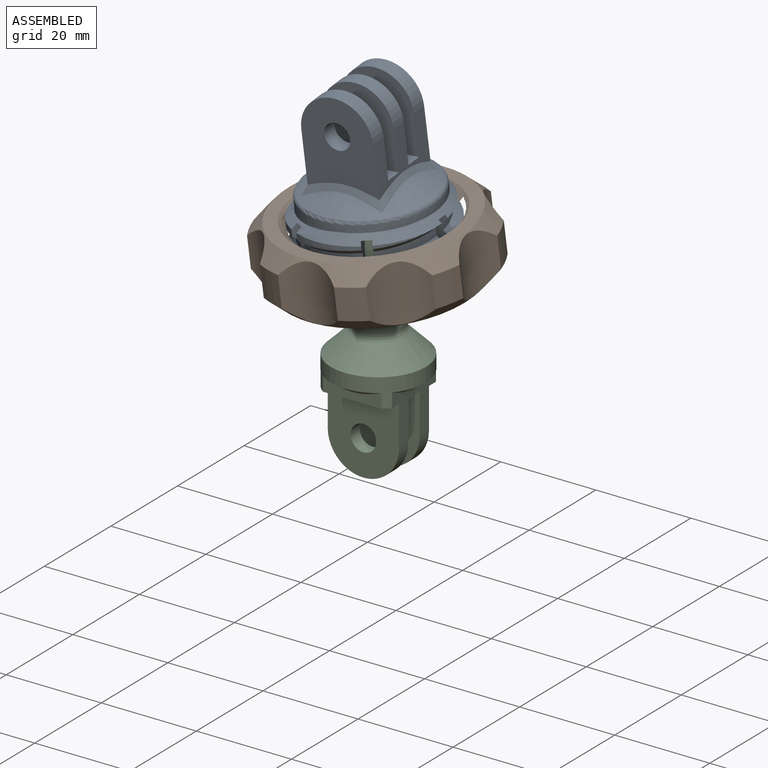
[diagram: assembled view]
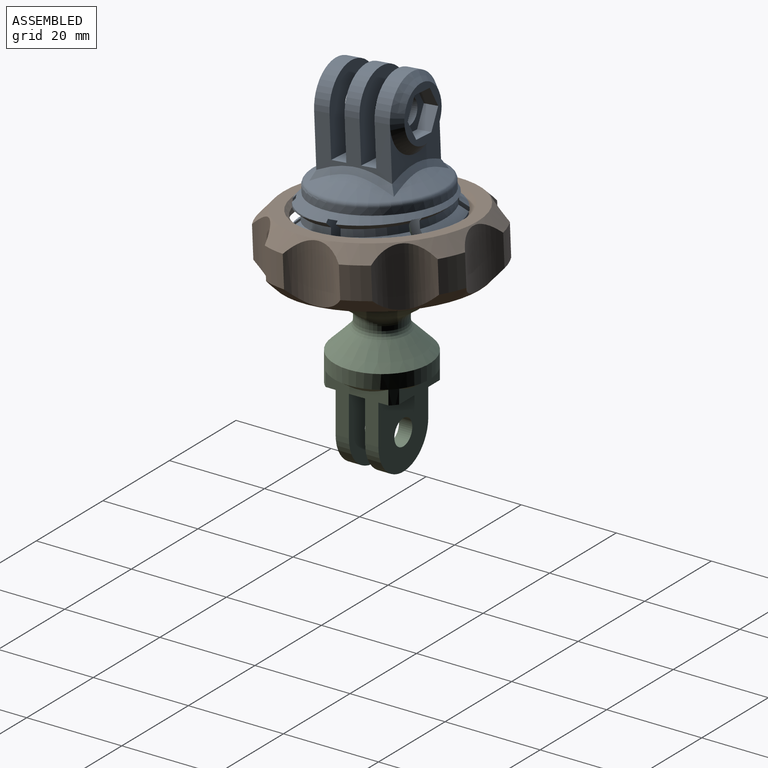
[diagram: assembled view, second angle]
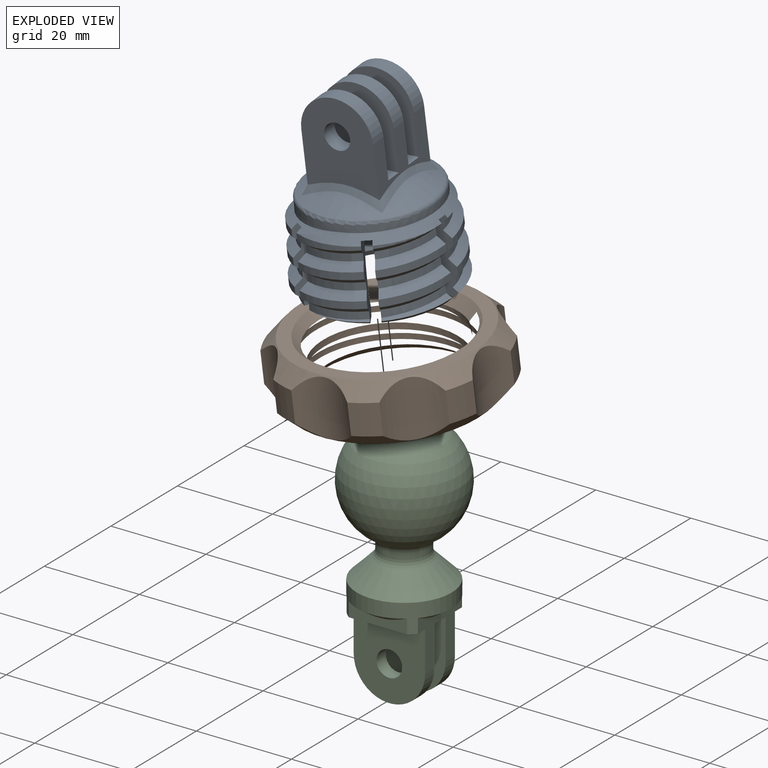
[diagram: exploded view]
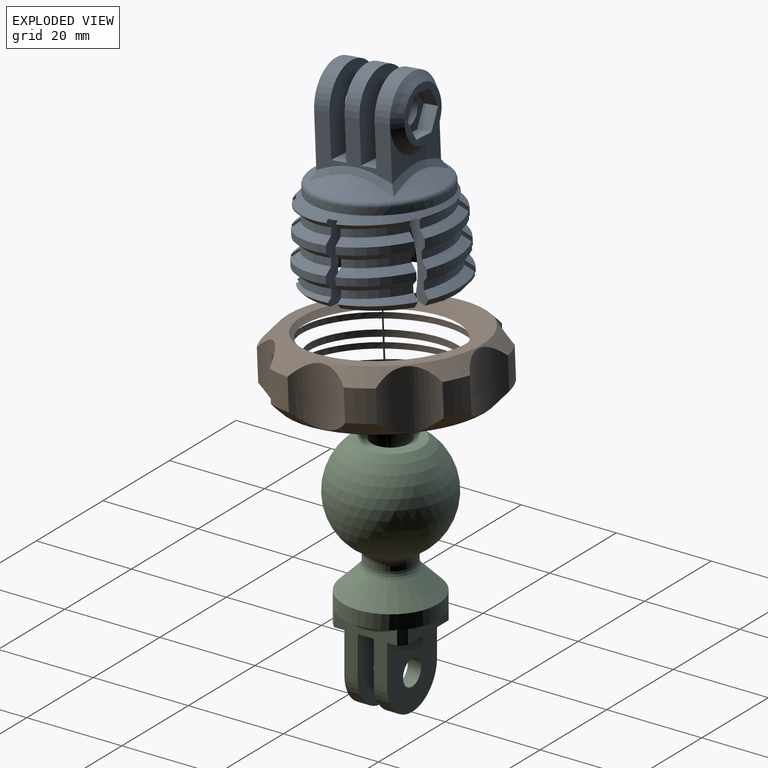
[diagram: exploded view, second angle]
ASSEMBLY  parts=3 mates=2
PART A: 153 faces, bbox 33.1x33.1x41.9 mm
  f0: plane 6.13x4.61mm, normal (0,0,-1), area 11.6mm2, adj f35,f127,f128,f133
  f1: plane 6.39x4.84mm, normal (0,0,-1), area 12.4mm2, adj f5,f124,f125,f133
  f2: plane 6.25x2mm, normal (0,0,-1), area 12.4mm2, adj f5,f122,f123,f133
  f3: plane 6.39x4.84mm, normal (0,0,-1), area 12.4mm2, adj f5,f121,f126,f133
  f4: plane 5.57x4.37mm, normal (0,0,-1), area 10.5mm2, adj f20,f131,f132,f133
  f5: cone r=13.5mm half-angle=45deg, axis (0,0,-1), area 104.6mm2, adj f1,f2,f3,f35,f41,f53,f57,f60
  f6: cone r=14.8mm half-angle=3.4deg, axis (0,0,-1), area 18.5mm2, adj f24,f41,f121,f122
  f7: cone r=14.8mm half-angle=3.4deg, axis (0,0,-1), area 19mm2, adj f25,f42,f121,f122
  f8: cone r=14.8mm half-angle=3.4deg, axis (0,0,-1), area 19.5mm2, adj f26,f43,f121,f122
  f9: cone r=14.8mm half-angle=3.4deg, axis (0,0,-1), area 19.8mm2, adj f29,f46,f79,f125,f127
  f10: cone r=14.8mm half-angle=3.4deg, axis (0,0,-1), area 19.2mm2, adj f28,f45,f125,f127
  f11: cone r=14.8mm half-angle=3.4deg, axis (0,0,-1), area 18.7mm2, adj f27,f44,f125,f127
  f12: cone r=14.8mm half-angle=3.4deg, axis (0,0,-1), area 12.6mm2, adj f49,f80,f128,f129
  f13: cone r=14.8mm half-angle=3.4deg, axis (0,0,-1), area 19.3mm2, adj f31,f48,f128,f129
  f14: cone r=14.8mm half-angle=3.4deg, axis (0,0,-1), area 18.8mm2, adj f30,f47,f128,f129
  f15: cone r=14.8mm half-angle=3.4deg, axis (0,0,-1), area 1.6mm2, adj f52,f81,f130
  f16: cone r=14.8mm half-angle=3.4deg, axis (0,0,-1), area 19.4mm2, adj f34,f51,f130,f131
  f17: cone r=14.8mm half-angle=3.4deg, axis (0,0,-1), area 18.9mm2, adj f33,f50,f130,f131
  f18: cone r=14.8mm half-angle=3.4deg, axis (0,0,-1), area 18.6mm2, adj f36,f53,f123,f124
  f19: cone r=14.8mm half-angle=3.4deg, axis (0,0,-1), area 19.1mm2, adj f37,f54,f123,f124
  f20: cone r=14.8mm half-angle=3.4deg, axis (0,0,-1), area 54.8mm2, adj f4,f32,f35,f38,f57,f89,f120,f126
  f21: cone r=14.8mm half-angle=3.4deg, axis (0,0,-1), area 18.9mm2, adj f39,f55,f126,f132
  f22: cone r=14.8mm half-angle=3.4deg, axis (0,0,-1), area 19.5mm2, adj f40,f56,f126,f132
  f23: cone r=14.8mm half-angle=3.4deg, axis (0,0,-1), area 19.6mm2, adj f83,f84,f123,f124
  f24: bspline ~21.88x11.29mm, area 28.4mm2, adj f6,f58,f121,f122
  f25: bspline ~24.25x19.45mm, area 29.2mm2, adj f7,f59,f121,f122
  f26: bspline ~12.36x8.03mm, area 23.1mm2, adj f8,f74,f121,f122
  f27: bspline ~23.83x6.93mm, area 28.7mm2, adj f11,f61,f125,f127
  f28: bspline ~14.13x3.23mm, area 29.4mm2, adj f10,f62,f125,f127
  f29: bspline ~23.67x7.62mm, area 3.8mm2, adj f9,f75,f125
  f30: bspline ~23.46x20.02mm, area 28.8mm2, adj f14,f64,f128,f129
  f31: bspline ~25.3x18.92mm, area 29.5mm2, adj f13,f65,f128,f129
  f32: bspline ~11.9x7.72mm, area 28.2mm2, adj f20,f66,f130,f131
  f33: bspline ~24.14x19.29mm, area 28.9mm2, adj f17,f67,f130,f131
  f34: bspline ~12.46x8.04mm, area 29.6mm2, adj f16,f68,f130,f131
  f35: bspline ~21.75x21.11mm, area 38.7mm2, adj f0,f5,f20,f60,f63,f127,f128,f129
  f36: bspline ~12.04x7.8mm, area 28.5mm2, adj f18,f70,f123,f124
  f37: bspline ~23.83x20.26mm, area 29.3mm2, adj f19,f71,f123,f124
  f38: bspline ~13.64x3.17mm, area 28.3mm2, adj f20,f72,f126,f132
  f39: bspline ~24.12x6.31mm, area 29mm2, adj f21,f73,f126,f132
  f40: bspline ~14.29x3.25mm, area 29.7mm2, adj f22,f77,f85,f126,f132
  f41: bspline ~20.44x12.27mm, area 19.8mm2, adj f5,f6,f121,f122
  f42: bspline ~21.88x11.21mm, area 26.1mm2, adj f7,f58,f121,f122
  f43: bspline ~24.25x19.45mm, area 26.8mm2, adj f8,f59,f121,f122
  f44: bspline ~23.1x7.94mm, area 25.7mm2, adj f11,f60,f125,f127
  f45: bspline ~23.83x6.78mm, area 26.4mm2, adj f10,f61,f125,f127
  f46: bspline ~24.34x6.82mm, area 27mm2, adj f9,f62,f125,f127
  f47: bspline ~21.18x11.76mm, area 25.8mm2, adj f14,f63,f128,f129
  f48: bspline ~23.46x20.02mm, area 26.5mm2, adj f13,f64,f128,f129
  f49: bspline ~25.3x18.92mm, area 27.2mm2, adj f12,f65,f128,f129
  f50: bspline ~25.14x17.42mm, area 25.9mm2, adj f17,f66,f130,f131
  f51: bspline ~24.14x19.29mm, area 26.6mm2, adj f16,f67,f130,f131
  f52: bspline ~22.68x11.5mm, area 11mm2, adj f15,f68,f76,f130
  f53: bspline ~25.53x16.44mm, area 25.5mm2, adj f5,f18,f69,f123,f124
  f54: bspline ~24.68x18.37mm, area 26.3mm2, adj f19,f70,f123,f124
  f55: bspline ~23.49x7.37mm, area 26mm2, adj f21,f72,f126,f132
  f56: bspline ~24.12x6.15mm, area 26.7mm2, adj f22,f73,f126,f132
  f57: bspline ~29.88x15.42mm, area 16.6mm2, adj f5,f20,f126
  f58: bspline ~21.88x10.71mm, area 21.3mm2, adj f24,f42,f121,f122
  f59: bspline ~24.25x19.45mm, area 21.8mm2, adj f25,f43,f121,f122
  f60: bspline ~23.1x7.1mm, area 15.8mm2, adj f5,f35,f44,f125,f127
  f61: bspline ~23.83x5.82mm, area 21.4mm2, adj f27,f45,f125,f127
  f62: bspline ~24.34x5.86mm, area 22mm2, adj f28,f46,f125,f127
  f63: bspline ~21.18x11.34mm, area 21mm2, adj f35,f47,f128,f129
  f64: bspline ~23.46x20.02mm, area 21.5mm2, adj f30,f48,f128,f129
  f65: bspline ~25.3x18.92mm, area 22mm2, adj f31,f49,f128,f129
  f66: bspline ~25.14x17.42mm, area 21.1mm2, adj f32,f50,f130,f131
  f67: bspline ~24.14x19.29mm, area 21.6mm2, adj f33,f51,f130,f131
  f68: bspline ~22.68x11mm, area 18.7mm2, adj f34,f52,f76,f130,f131
  f69: bspline ~16.53x16.44mm, area 3.9mm2, adj f5,f53,f124
  f70: bspline ~24.68x18.37mm, area 21.4mm2, adj f36,f54,f123,f124
  f71: bspline ~23.83x20.26mm, area 21.9mm2, adj f37,f84,f123,f124
  f72: bspline ~23.49x6.48mm, area 21.2mm2, adj f38,f55,f126,f132
  f73: bspline ~24.12x5.13mm, area 21.7mm2, adj f39,f56,f126,f132
  f74: cone r=18.5mm half-angle=45deg, axis (0,0,1), area 24mm2, adj f26,f78,f121,f122
  f75: cone r=18.5mm half-angle=45deg, axis (0,0,1), area 3.9mm2, adj f29,f79,f125
  f76: cone r=18.5mm half-angle=45deg, axis (0,0,1), area 17.7mm2, adj f52,f68,f81,f131
  f77: cone r=18.5mm half-angle=45deg, axis (0,0,1), area 30.6mm2, adj f40,f85,f87,f126,f132
  f78: plane 11.03x7.73mm, normal (0,0,-1), area 31.9mm2, adj f74,f121,f122,f150
  f79: plane 12.74x3.82mm, normal (0,0,-1), area 31.9mm2, adj f9,f75,f125,f127,f149
  f80: plane 11.03x7.73mm, normal (0,0,-1), area 31.9mm2, adj f12,f128,f129,f148
  f81: plane 11.05x7.74mm, normal (0,0,-1), area 31.9mm2, adj f15,f76,f130,f131,f147
  f82: plane 11.03x7.73mm, normal (0,0,-1), area 31.9mm2, adj f86,f123,f124,f151
  f83: bspline ~22.42x12.39mm, area 13.3mm2, adj f23,f86,f123,f124
  f84: bspline ~23.83x20.26mm, area 26.9mm2, adj f23,f71,f123,f124
  f85: bspline ~24.51x6.67mm, area 4.9mm2, adj f40,f77,f132
  f86: cone r=18.5mm half-angle=45deg, axis (0,0,1), area 13.8mm2, adj f82,f83,f123,f124
  f87: plane 12.74x3.82mm, normal (0,0,-1), area 31.9mm2, adj f77,f126,f132,f146
  f88: cone r=13.5mm half-angle=58.4deg, axis (0,0,-1), area 286.3mm2, adj f116,f117,f118,f119,f152
  f89: cylinder r=13.5mm len=27mm, axis (0,0,1), area 122.2mm2, adj f5,f20,f152
  f90: plane 15.23x11.05mm, normal (0,1,0), area 58.3mm2, adj f91,f93,f108,f116,f118
  f91: plane 16.05x11.08mm, normal (1,0,0), area 98.2mm2, adj f90,f92,f95,f96,f97,f99,f100,f102
  f92: plane 18.56x15.22mm, normal (0,-1,0), area 212.1mm2, adj f91,f93,f98,f99,f117
  f93: plane 15.85x10.87mm, normal (-1,0,0), area 98.2mm2, adj f90,f92,f95,f96,f97,f99,f100,f102
  f94: cylinder r=2.7mm len=5.4mm, axis (0,-1,0), area 33.9mm2, adj f104,f115
  f95: plane 15x3.15mm, normal (0,0,1), area 47.2mm2, adj f91,f93,f102,f104
  f96: plane 15x3.15mm, normal (0,0,1), area 47.2mm2, adj f91,f93,f97,f103
  f97: plane 16x15mm, normal (0,1,0), area 193mm2, adj f91,f93,f96,f98,f99
  f98: cylinder r=2.7mm len=5.4mm, axis (0,1,0), area 54.3mm2, adj f92,f97
  f99: cylinder r=7.5mm len=15mm, axis (0,1,0), area 75.4mm2, adj f91,f92,f93,f97
  f100: cylinder r=7.5mm len=15mm, axis (0,-1,0), area 73mm2, adj f91,f93,f102,f103
  f101: cylinder r=2.7mm len=5.4mm, axis (0,-1,0), area 52.6mm2, adj f102,f103
  f102: plane 16x15mm, normal (0,1,0), area 193mm2, adj f91,f93,f95,f100,f101
  f103: plane 16x15mm, normal (0,-1,0), area 193mm2, adj f91,f93,f96,f100,f101
  f104: plane 16x15mm, normal (0,-1,0), area 193mm2, adj f91,f93,f94,f95,f105
  f105: cylinder r=7.5mm len=15mm, axis (0,-1,0), area 75.4mm2, adj f91,f93,f104,f107
  f106: plane 11.42x11.42mm, normal (0,1,0), area 45.2mm2, adj f107,f108,f109,f110,f111,f112,f113,f114
  f107: cone r=5.7mm half-angle=45deg, axis (0,-1,0), area 52.8mm2, adj f105,f106,f108
  f108: bspline ~15.01x7.5mm, area 52.8mm2, adj f90,f106,f107
  f109: plane 4.05x3mm, normal (-0.87,0,-0.5), area 14mm2, adj f106,f110,f114,f115
  f110: plane 4.05x3mm, normal (-0.87,0,0.5), area 14mm2, adj f106,f109,f111,f115
  f111: plane 4.68x3mm, normal (0,0,1), area 14mm2, adj f106,f110,f112,f115
  f112: plane 4.05x3mm, normal (0.87,0,0.5), area 14mm2, adj f106,f111,f113,f115
  f113: plane 4.05x3mm, normal (0.87,0,-0.5), area 14mm2, adj f106,f112,f114,f115
  f114: plane 4.68x3mm, normal (0,0,-1), area 14mm2, adj f106,f109,f113,f115
  f115: plane 9.35x8.1mm, normal (0,1,0), area 33.9mm2, adj f94,f109,f110,f111,f112,f113,f114
  f116: bspline ~20.56x4.15mm, area 26.8mm2, adj f88,f90,f93,f117,f118
  f117: bspline ~19.69x3.87mm, area 25.4mm2, adj f88,f92,f116,f119
  f118: bspline ~19.69x3.87mm, area 25.3mm2, adj f88,f90,f116,f119
  f119: bspline ~18.78x3.74mm, area 26.8mm2, adj f88,f91,f117,f118
  f120: plane 5.31x2mm, normal (0,0,-1), area 10.5mm2, adj f20,f129,f130,f133
  f121: plane 16.01x6.66mm, normal (-0.87,0.5,0), area 60.3mm2, adj f3,f5,f6,f7,f8,f24,f25,f26
  f122: plane 16.01x7.53mm, normal (0,-1,0), area 60.2mm2, adj f2,f5,f6,f7,f8,f24,f25,f26
  f123: plane 16.01x7.54mm, normal (0,1,0), area 60.2mm2, adj f2,f5,f18,f19,f23,f36,f37,f53
  f124: plane 16.01x6.58mm, normal (-0.87,-0.5,0), area 60.9mm2, adj f1,f5,f18,f19,f23,f36,f37,f53
  f125: plane 16.01x6.58mm, normal (0.87,0.5,0), area 61mm2, adj f1,f5,f9,f10,f11,f27,f28,f29
  f126: plane 16.01x6.71mm, normal (0.87,-0.5,0), area 60.3mm2, adj f3,f5,f20,f21,f22,f38,f39,f40
  f127: plane 16.01x6.62mm, normal (-0.87,0.5,0), area 62.1mm2, adj f0,f9,f10,f11,f27,f28,f35,f44
  f128: plane 16.01x6.63mm, normal (0.87,-0.5,0), area 62.1mm2, adj f0,f12,f13,f14,f30,f31,f35,f47
  f129: plane 16.01x7.7mm, normal (0,1,0), area 62.2mm2, adj f12,f13,f14,f20,f30,f31,f35,f47
  f130: plane 16.01x7.7mm, normal (0,-1,0), area 62.2mm2, adj f15,f16,f17,f20,f32,f33,f34,f50
  f131: plane 16.01x6.72mm, normal (0.87,0.5,0), area 61.4mm2, adj f4,f16,f17,f20,f32,f33,f34,f50
  f132: plane 16.01x6.72mm, normal (-0.87,-0.5,0), area 61.2mm2, adj f4,f20,f21,f22,f38,f39,f40,f55
  f133: sphere r=13mm, area 284.4mm2, adj f0,f1,f2,f3,f4,f120,f121,f122
  f134: cylinder r=9mm len=6.25mm, axis (0,0,-1), area 10.7mm2, adj f121,f122,f133,f139
  f135: cylinder r=9mm len=6.25mm, axis (0,0,-1), area 10.7mm2, adj f123,f124,f133,f140
  f136: cylinder r=9mm len=7.21mm, axis (0,0,-1), area 10.7mm2, adj f125,f127,f133,f141
  f137: cylinder r=9mm len=7.21mm, axis (0,0,-1), area 10.7mm2, adj f126,f132,f133,f145
  f138: cylinder r=9mm len=6.25mm, axis (0,0,-1), area 10.7mm2, adj f128,f129,f133,f142
  f139: sphere r=12mm, area 132.7mm2, adj f121,f122,f134,f150
  f140: sphere r=12mm, area 132.7mm2, adj f123,f124,f135,f151
  f141: sphere r=12mm, area 132.7mm2, adj f125,f127,f136,f149
  f142: sphere r=12mm, area 132.7mm2, adj f128,f129,f138,f148
  f143: sphere r=12mm, area 132.7mm2, adj f130,f131,f144,f147
  f144: cylinder r=9mm len=6.25mm, axis (0,0,-1), area 10.7mm2, adj f130,f131,f133,f143
  f145: sphere r=12mm, area 132.7mm2, adj f126,f132,f137,f146
  f146: cone r=11mm half-angle=33.2deg, axis (0,0,-1), area 14.4mm2, adj f87,f126,f132,f145
  f147: cone r=11mm half-angle=33.2deg, axis (0,0,-1), area 14.4mm2, adj f81,f130,f131,f143
  f148: cone r=11mm half-angle=33.2deg, axis (0,0,-1), area 14.4mm2, adj f80,f128,f129,f142
  f149: cone r=11mm half-angle=33.2deg, axis (0,0,-1), area 14.4mm2, adj f79,f125,f127,f141
  f150: cone r=11mm half-angle=33.2deg, axis (0,0,-1), area 14.4mm2, adj f78,f121,f122,f139
  f151: cone r=11mm half-angle=33.2deg, axis (0,0,-1), area 14.4mm2, adj f82,f123,f124,f140
  f152: torus R=12.5mm, axis (0,0,-1), area 85.4mm2, adj f88,f89
PART B: 24 faces, bbox 44.6x44.6x12.5 mm
  f0: cylinder r=22.3mm len=6.5mm, axis (0,0,1), area 36.8mm2, adj f1,f21,f22,f23
  f1: cylinder r=9.5mm len=12.1mm, axis (0,0,1), area 128.1mm2, adj f0,f2,f21,f22
  f2: cylinder r=22.3mm len=6.5mm, axis (0,0,1), area 36.8mm2, adj f1,f3,f21,f22
  f3: cylinder r=9.5mm len=12.1mm, axis (0,0,1), area 128.1mm2, adj f2,f4,f21,f22
  f4: cylinder r=22.3mm len=6.5mm, axis (0,0,1), area 36.8mm2, adj f3,f5,f21,f22
  f5: cylinder r=9.5mm len=12.1mm, axis (0,0,1), area 128.1mm2, adj f4,f6,f21,f22
  f6: cylinder r=22.3mm len=6.5mm, axis (0,0,1), area 36.8mm2, adj f5,f7,f21,f22
  f7: cylinder r=9.5mm len=12.1mm, axis (0,0,1), area 122.7mm2, adj f6,f8,f21,f22
  f8: cylinder r=22.3mm len=6.5mm, axis (0,0,1), area 36.8mm2, adj f7,f9,f21,f22
  f9: cylinder r=9.5mm len=12.1mm, axis (0,0,1), area 128.1mm2, adj f8,f10,f21,f22
  f10: cylinder r=22.3mm len=6.5mm, axis (0,0,1), area 36.8mm2, adj f9,f11,f21,f22
  f11: cylinder r=9.5mm len=12.1mm, axis (0,0,1), area 128.1mm2, adj f10,f12,f21,f22
  f12: cylinder r=22.3mm len=6.5mm, axis (0,0,1), area 36.8mm2, adj f11,f13,f21,f22
  f13: cylinder r=9.5mm len=12.1mm, axis (0,0,1), area 128.1mm2, adj f12,f15,f21,f22
  f14: plane 38.6x38.6mm, normal (0,0,1), area 306.3mm2, adj f20,f22
  f15: cylinder r=22.3mm len=6.5mm, axis (0,0,1), area 36.8mm2, adj f13,f21,f22,f23
  f16: plane 38.6x38.6mm, normal (0,0,-1), area 306.3mm2, adj f17,f21
  f17: cone r=14.44mm half-angle=45deg, axis (0,0,-1), area 190.4mm2, adj f16,f18,f19
  f18: cylinder r=16mm len=32mm, axis (0,0,-1), area 241.8mm2, adj f17,f20
  f19: cylinder r=14.5mm len=29mm, axis (0,0,1), area 184.2mm2, adj f17,f20
  f20: cone r=16.44mm half-angle=45deg, axis (0,0,1), area 190.3mm2, adj f14,f18,f19
  f21: cone r=19.3mm half-angle=45deg, axis (0,0,1), area 302.8mm2, adj f0,f1,f2,f3,f4,f5,f6,f7
  f22: cone r=19.3mm half-angle=45deg, axis (0,0,-1), area 302.8mm2, adj f0,f1,f2,f3,f4,f5,f6,f7
  f23: cylinder r=9.5mm len=12.1mm, axis (0,0,1), area 122.7mm2, adj f0,f15,f21,f22
PART C: 29 faces, bbox 24x24x50.9 mm
  f0: cone r=10mm half-angle=56.3deg, axis (0,0,1), area 21.1mm2, adj f6,f12
  f1: cone r=10mm half-angle=56.3deg, axis (0,0,1), area 27.2mm2, adj f6,f15
  f2: cone r=10mm half-angle=56.3deg, axis (0,0,1), area 21.1mm2, adj f6,f14
  f3: sphere r=12mm, area 1537.5mm2, adj f11,f27
  f4: cylinder r=5mm len=10mm, axis (0,0,-1), area 30mm2, adj f27,f28
  f5: cone r=5mm half-angle=45deg, axis (0,0,-1), area 305.7mm2, adj f6,f28
  f6: cylinder r=10mm len=20mm, axis (0,0,-1), area 211.1mm2, adj f0,f1,f2,f5,f7,f12,f13,f14
  f7: cone r=10mm half-angle=56.3deg, axis (0,0,1), area 27.2mm2, adj f6,f13
  f8: plane 8x8mm, normal (0,0,1), area 50.3mm2, adj f9
  f9: sphere r=7.21mm, area 543.7mm2, adj f8,f10
  f10: cylinder r=4mm len=8mm, axis (0,0,-1), area 100.5mm2, adj f9,f11
  f11: plane 13.27x13.27mm, normal (0,0,1), area 88mm2, adj f3,f10
  f12: plane 12.27x3mm, normal (0,1,0), area 25.6mm2, adj f0,f6,f18
  f13: plane 13.25x11.51mm, normal (-1,0,0), area 73mm2, adj f6,f7,f16,f17,f18,f19,f21,f22
  f14: plane 12.27x3mm, normal (0,-1,0), area 25.6mm2, adj f2,f6,f16
  f15: plane 13.25x11.51mm, normal (1,0,0), area 73mm2, adj f1,f6,f16,f17,f18,f19,f21,f22
  f16: plane 15x3.4mm, normal (0,0,-1), area 49.4mm2, adj f6,f13,f14,f15,f25
  f17: plane 15x3.4mm, normal (0,0,-1), area 51mm2, adj f13,f15,f22,f26
  f18: plane 15x3.4mm, normal (0,0,-1), area 49.4mm2, adj f6,f12,f13,f15,f21
  f19: cylinder r=7.5mm len=15mm, axis (0,-1,0), area 66mm2, adj f13,f15,f21,f22
  f20: cylinder r=2.7mm len=5.4mm, axis (0,-1,0), area 47.5mm2, adj f21,f22
  f21: plane 16x15mm, normal (0,1,0), area 193mm2, adj f13,f15,f18,f19,f20
  f22: plane 16x15mm, normal (0,-1,0), area 193mm2, adj f13,f15,f17,f19,f20
  f23: cylinder r=7.5mm len=15mm, axis (0,1,0), area 66mm2, adj f13,f15,f25,f26
  f24: cylinder r=2.7mm len=5.4mm, axis (0,1,0), area 47.5mm2, adj f25,f26
  f25: plane 16x15mm, normal (0,-1,0), area 193mm2, adj f13,f15,f16,f23,f24
  f26: plane 16x15mm, normal (0,1,0), area 193mm2, adj f13,f15,f17,f23,f24
  f27: torus R=7mm, axis (0,0,1), area 70.4mm2, adj f3,f4
  f28: torus R=7mm, axis (0,0,-1), area 51.3mm2, adj f4,f5
PLACE A rot(axis=(0.8,-0.58,0.15),6.3deg) t=(-20.29,-13.47,19.52)mm
PLACE B rot(axis=(0.8,-0.58,0.15),6.3deg) t=(-20.1,-13.2,16.51)mm
PLACE C t=(-20.29,-13.47,19.52)mm fixed
MATE fastened B.f0 <-> A.f88  axis (-0.06,-0.09,0.99) through (-20.4,-13.62,21.23)mm
MATE ball A.f5 <-> C.f0  axis (-0.06,-0.09,0.99) through (-20.29,-13.47,19.52)mm
